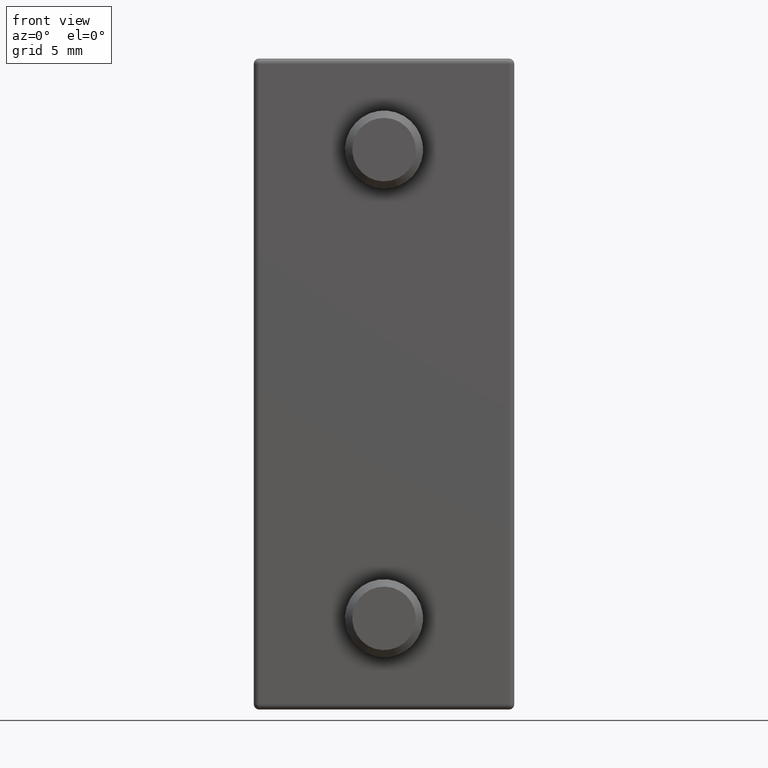
[diagram: clean part render]
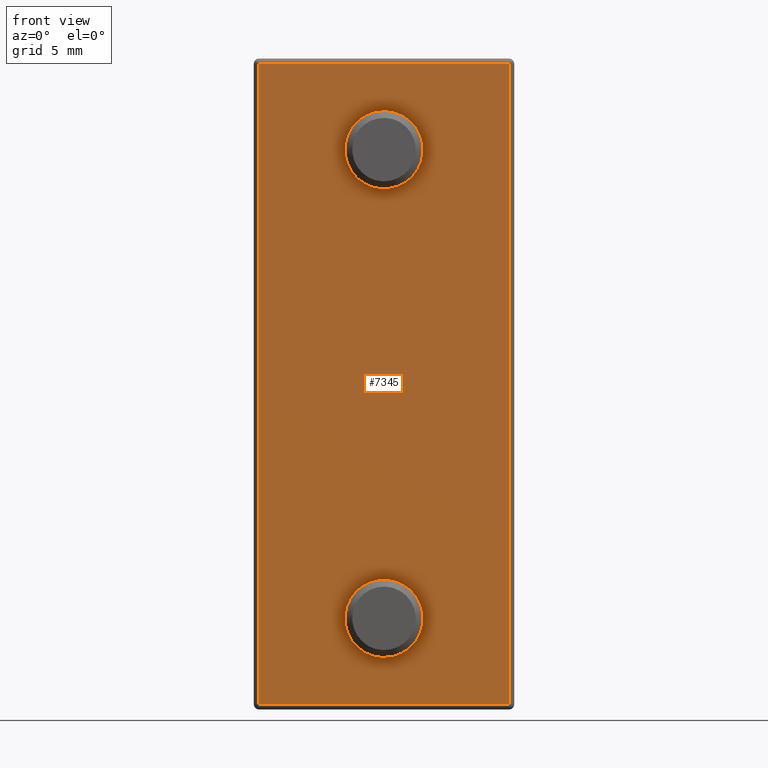
[diagram: same view with one face highlighted and labeled with its STEP entity id]
A machine part, front view. The second image highlights one B-rep face of the part: STEP entity #7345.
In plain terms, the highlighted planar face has unit normal (0, 1, 0).
Its self-contained STEP definition (entity closure, byte-faithful):
#152 = CARTESIAN_POINT ( 'NONE',  ( -5.000000000000000900, -1.499999999999999300, 12.50000000000000000 ) ) ;
#211 = EDGE_CURVE ( 'NONE', #4251, #464, #2656, .T. ) ;
#216 = ORIENTED_EDGE ( 'NONE', *, *, #3075, .T. ) ;
#235 = PLANE ( 'NONE',  #2816 ) ;
#464 = VERTEX_POINT ( 'NONE', #6991 ) ;
#1058 = ORIENTED_EDGE ( 'NONE', *, *, #7173, .T. ) ;
#1233 = DIRECTION ( 'NONE',  ( 0.0000000000000000000, 0.0000000000000000000, 1.000000000000000000 ) ) ;
#1336 = CARTESIAN_POINT ( 'NONE',  ( -4.800000000000001600, -1.499999999999999300, 12.30000000000000100 ) ) ;
#1544 = VERTEX_POINT ( 'NONE', #8610 ) ;
#1835 = DIRECTION ( 'NONE',  ( -0.0000000000000000000, -0.0000000000000000000, 1.000000000000000000 ) ) ;
#2112 = EDGE_CURVE ( 'NONE', #11485, #6718, #9637, .T. ) ;
#2308 = DIRECTION ( 'NONE',  ( 0.0000000000000000000, 1.000000000000000000, 0.0000000000000000000 ) ) ;
#2474 = CARTESIAN_POINT ( 'NONE',  ( 0.0000000000000000000, -1.499999999999999300, -9.000000000000000000 ) ) ;
#2635 = CARTESIAN_POINT ( 'NONE',  ( 0.0000000000000000000, -1.499999999999999300, -9.000000000000000000 ) ) ;
#2656 = CIRCLE ( 'NONE', #12130, 1.499999999999994400 ) ;
#2816 = AXIS2_PLACEMENT_3D ( 'NONE', #152, #2308, #12316 ) ;
#3075 = EDGE_CURVE ( 'NONE', #3453, #11485, #6484, .T. ) ;
#3453 = VERTEX_POINT ( 'NONE', #5465 ) ;
#3605 = VECTOR ( 'NONE', #8217, 1000.000000000000000 ) ;
#3857 = CARTESIAN_POINT ( 'NONE',  ( -4.800000000000001600, -1.499999999999999300, 12.50000000000000000 ) ) ;
#3884 = FACE_BOUND ( 'NONE', #3930, .T. ) ;
#3930 = EDGE_LOOP ( 'NONE', ( #1058, #12819 ) ) ;
#4251 = VERTEX_POINT ( 'NONE', #4622 ) ;
#4573 = AXIS2_PLACEMENT_3D ( 'NONE', #2635, #4620, #4797 ) ;
#4620 = DIRECTION ( 'NONE',  ( 0.0000000000000000000, 1.000000000000000000, 0.0000000000000000000 ) ) ;
#4622 = CARTESIAN_POINT ( 'NONE',  ( 1.836970198721022800E-016, -1.499999999999999300, 10.49999999999999300 ) ) ;
#4797 = DIRECTION ( 'NONE',  ( 0.0000000000000000000, 0.0000000000000000000, 1.000000000000000000 ) ) ;
#4889 = DIRECTION ( 'NONE',  ( -0.0000000000000000000, 0.0000000000000000000, -1.000000000000000000 ) ) ;
#5092 = ORIENTED_EDGE ( 'NONE', *, *, #2112, .T. ) ;
#5197 = VECTOR ( 'NONE', #9923, 1000.000000000000000 ) ;
#5198 = CARTESIAN_POINT ( 'NONE',  ( 4.799999999999999800, -1.499999999999999300, -12.30000000000000200 ) ) ;
#5418 = CIRCLE ( 'NONE', #4573, 1.499999999999987600 ) ;
#5465 = CARTESIAN_POINT ( 'NONE',  ( 4.799999999999999800, -1.499999999999999300, 12.30000000000000100 ) ) ;
#5487 = EDGE_CURVE ( 'NONE', #12577, #3453, #11054, .T. ) ;
#5550 = DIRECTION ( 'NONE',  ( 0.0000000000000000000, 1.000000000000000000, 0.0000000000000000000 ) ) ;
#6242 = DIRECTION ( 'NONE',  ( 0.0000000000000000000, 1.000000000000000000, 0.0000000000000000000 ) ) ;
#6484 = LINE ( 'NONE', #12447, #3605 ) ;
#6526 = CARTESIAN_POINT ( 'NONE',  ( -4.800000000000001600, -1.499999999999999300, -12.30000000000000200 ) ) ;
#6718 = VERTEX_POINT ( 'NONE', #6526 ) ;
#6920 = VECTOR ( 'NONE', #4889, 1000.000000000000000 ) ;
#6991 = CARTESIAN_POINT ( 'NONE',  ( 0.0000000000000000000, -1.499999999999999300, 7.500000000000005300 ) ) ;
#6995 = ORIENTED_EDGE ( 'NONE', *, *, #7612, .T. ) ;
#7073 = AXIS2_PLACEMENT_3D ( 'NONE', #2474, #5550, #12704 ) ;
#7156 = AXIS2_PLACEMENT_3D ( 'NONE', #13225, #8992, #12063 ) ;
#7173 = EDGE_CURVE ( 'NONE', #464, #4251, #8996, .T. ) ;
#7345 = ADVANCED_FACE ( 'NONE', ( #12023, #9320, #3884 ), #235, .F. ) ;
#7612 = EDGE_CURVE ( 'NONE', #6718, #12577, #9013, .T. ) ;
#7787 = ORIENTED_EDGE ( 'NONE', *, *, #12259, .T. ) ;
#7862 = EDGE_CURVE ( 'NONE', #10181, #1544, #8370, .T. ) ;
#8217 = DIRECTION ( 'NONE',  ( -1.000000000000000000, 0.0000000000000000000, -0.0000000000000000000 ) ) ;
#8370 = CIRCLE ( 'NONE', #7073, 1.499999999999987600 ) ;
#8447 = CARTESIAN_POINT ( 'NONE',  ( 0.0000000000000000000, -1.499999999999999300, 9.000000000000000000 ) ) ;
#8610 = CARTESIAN_POINT ( 'NONE',  ( 0.0000000000000000000, -1.499999999999999300, -10.49999999999998800 ) ) ;
#8992 = DIRECTION ( 'NONE',  ( 0.0000000000000000000, 1.000000000000000000, 0.0000000000000000000 ) ) ;
#8996 = CIRCLE ( 'NONE', #7156, 1.499999999999994400 ) ;
#9013 = LINE ( 'NONE', #12846, #5197 ) ;
#9320 = FACE_BOUND ( 'NONE', #9561, .T. ) ;
#9561 = EDGE_LOOP ( 'NONE', ( #7787, #11637 ) ) ;
#9637 = LINE ( 'NONE', #3857, #6920 ) ;
#9644 = CARTESIAN_POINT ( 'NONE',  ( 4.799999999999998900, -1.499999999999999300, 12.50000000000000000 ) ) ;
#9923 = DIRECTION ( 'NONE',  ( 1.000000000000000000, -0.0000000000000000000, 0.0000000000000000000 ) ) ;
#10181 = VERTEX_POINT ( 'NONE', #10390 ) ;
#10372 = EDGE_LOOP ( 'NONE', ( #216, #5092, #6995, #12975 ) ) ;
#10390 = CARTESIAN_POINT ( 'NONE',  ( 1.836970198721014400E-016, -1.499999999999999300, -7.500000000000011500 ) ) ;
#11054 = LINE ( 'NONE', #9644, #11686 ) ;
#11485 = VERTEX_POINT ( 'NONE', #1336 ) ;
#11637 = ORIENTED_EDGE ( 'NONE', *, *, #7862, .T. ) ;
#11686 = VECTOR ( 'NONE', #1835, 1000.000000000000000 ) ;
#12023 = FACE_OUTER_BOUND ( 'NONE', #10372, .T. ) ;
#12063 = DIRECTION ( 'NONE',  ( 0.0000000000000000000, 0.0000000000000000000, 1.000000000000000000 ) ) ;
#12130 = AXIS2_PLACEMENT_3D ( 'NONE', #8447, #6242, #1233 ) ;
#12259 = EDGE_CURVE ( 'NONE', #1544, #10181, #5418, .T. ) ;
#12316 = DIRECTION ( 'NONE',  ( 0.0000000000000000000, -0.0000000000000000000, 1.000000000000000000 ) ) ;
#12447 = CARTESIAN_POINT ( 'NONE',  ( -5.000000000000000900, -1.499999999999999300, 12.30000000000000100 ) ) ;
#12577 = VERTEX_POINT ( 'NONE', #5198 ) ;
#12704 = DIRECTION ( 'NONE',  ( 0.0000000000000000000, 0.0000000000000000000, 1.000000000000000000 ) ) ;
#12819 = ORIENTED_EDGE ( 'NONE', *, *, #211, .T. ) ;
#12846 = CARTESIAN_POINT ( 'NONE',  ( -5.000000000000000900, -1.499999999999999300, -12.30000000000000200 ) ) ;
#12975 = ORIENTED_EDGE ( 'NONE', *, *, #5487, .T. ) ;
#13225 = CARTESIAN_POINT ( 'NONE',  ( 0.0000000000000000000, -1.499999999999999300, 9.000000000000000000 ) ) ;